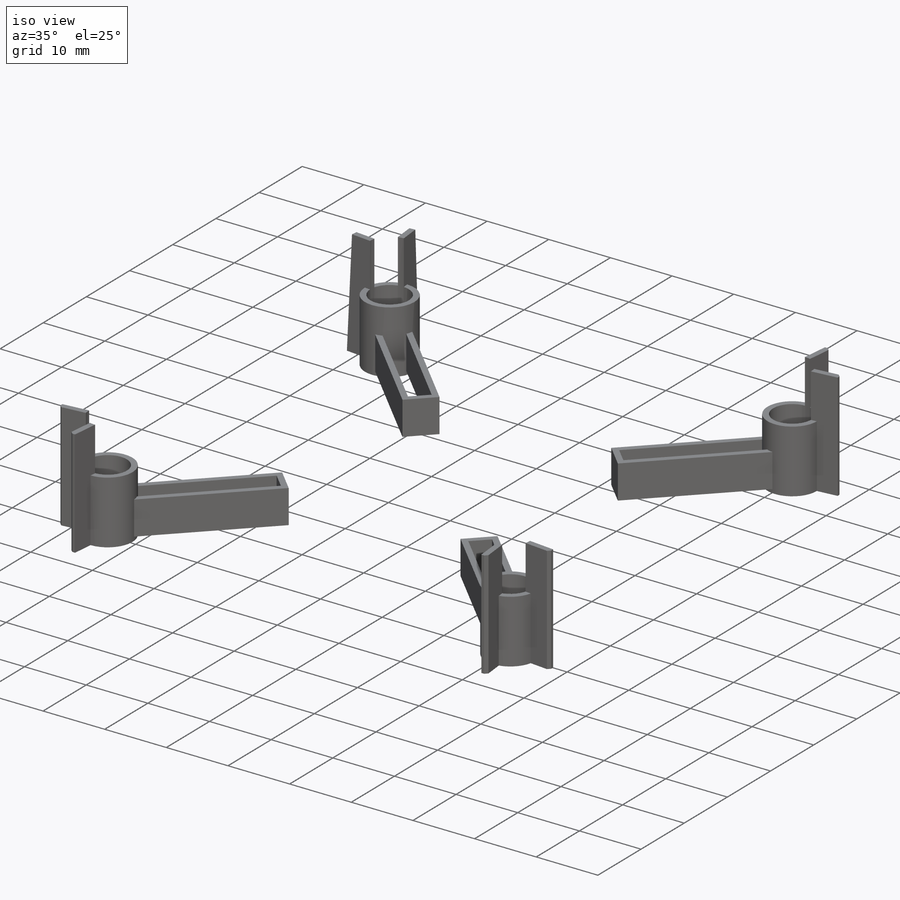
[diagram: iso view]
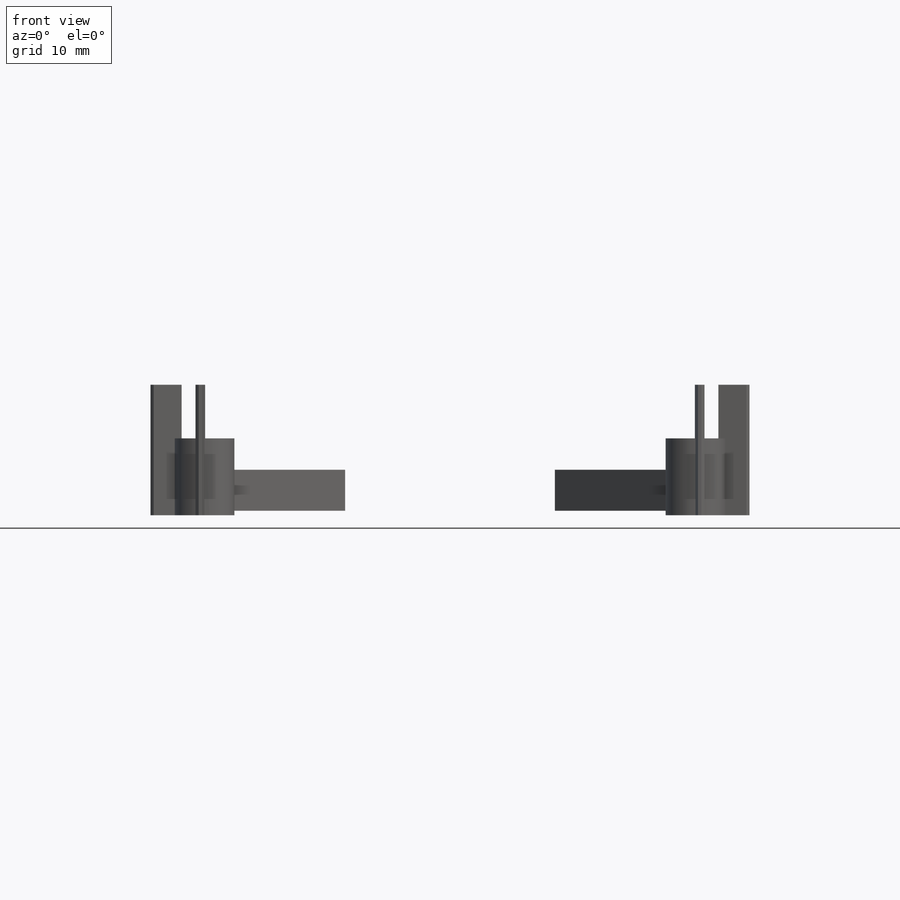
[diagram: front view]
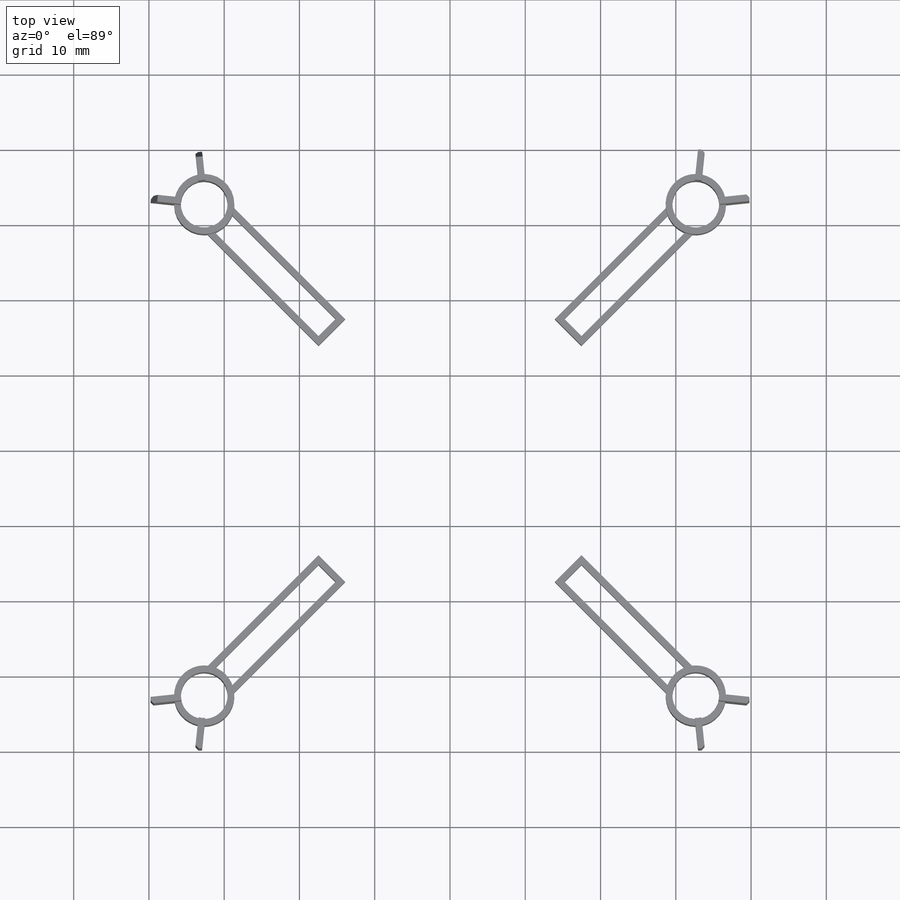
[diagram: top view]
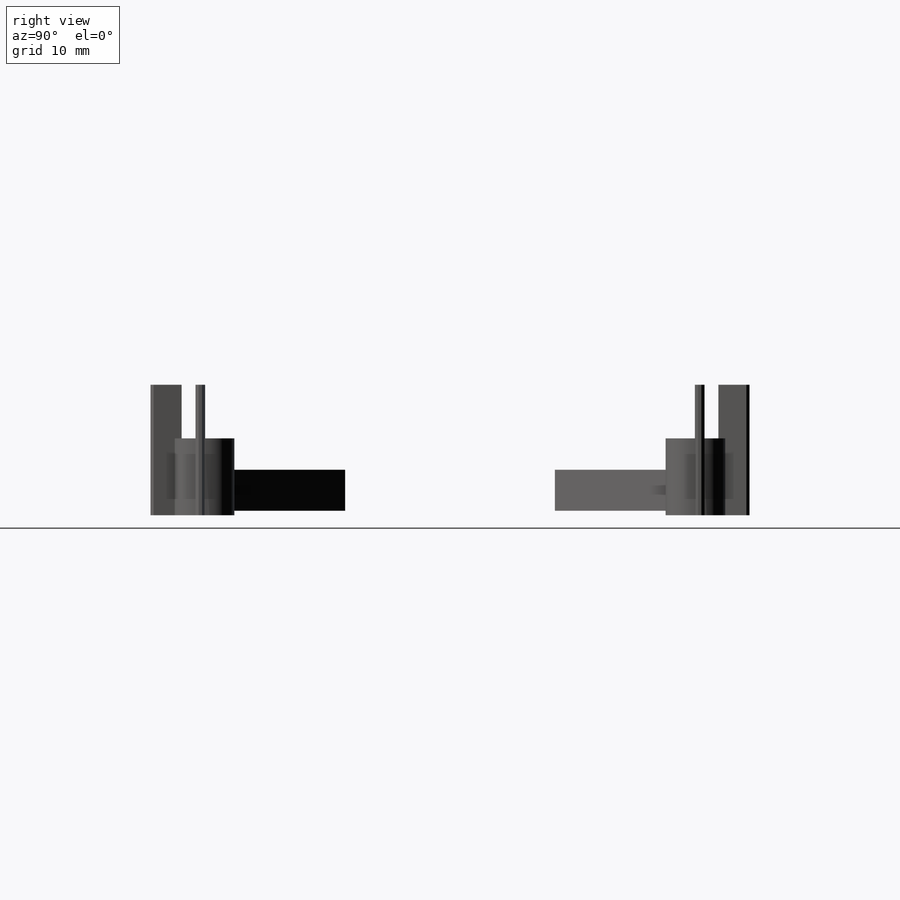
[diagram: right view]
SOLIDWORKS PART (.sldprt)
format: sldprt  version: not decoded by parser v0  size: 408,576 bytes
history: native  units: mm
features: sketch x5, extrude x3, cut_extrude x2, material x1, plane x1 (+13 scaffold rows collapsed)
feature tree (25):
  scaffold x13  (default folders/planes/origin — collapsed)
  material  "Material <not specified>"
  sketch  "Sketch2"  dims[c1.D3=~6.208789mm c1.D9=~6.208789mm c1.D11=~6.208789mm c1.D1=5.58mm c1.D2=0.9mm c1.D4=0.45mm c1.D5=0.45mm c1.D6=~2.821265mm c1.D7=~3.136981mm c1.D8=~3.158462mm c2.D2=~46.185203mm c2.D9=0.9mm c2.D10=~32.65787mm c3.D10=45.0deg c3.D11=~3.175853mm c4.D11=~39.001271deg c4.D13=~7.14146mm c4.D12=4.0]
  extrude  "Boss-Extrude1"  Depth=10.22mm
  sketch  "Sketch3"  dims[c1.D1=~6.208789mm c1.D2=~9.348386mm c2.D2=45.0deg c2.D3=4.0]
  extrude  "Boss-Extrude2"  Depth=7.12mm
  plane  "Plane1"  Offset=0.6mm
  sketch  "Sketch5"  dims[c1.D1=2.5mm c1.D2=0.9mm c1.D3=0.9mm c1.D4=23.98mm c1.D5=0.9mm c1.D6=2.5mm c2.D1=4.0]
  extrude  "Boss-Extrude3"  Depth=5.44mm
  sketch  "Sketch7"  dims[D1=~0.915061mm]
  cut_extrude  "Cut-Extrude2"  [1 undecoded]
  sketch  "Sketch8"  dims[D1=~0.894354mm]
  cut_extrude  "Cut-Extrude3"  [1 undecoded]
decode coverage: 8 of 10 modeling features carry decoded parameters
note: ~ marks probable driven/reference dimensions
note: 2 parameter values undecoded
note: suppression state not decoded; provenance and decode notes live in map.json
